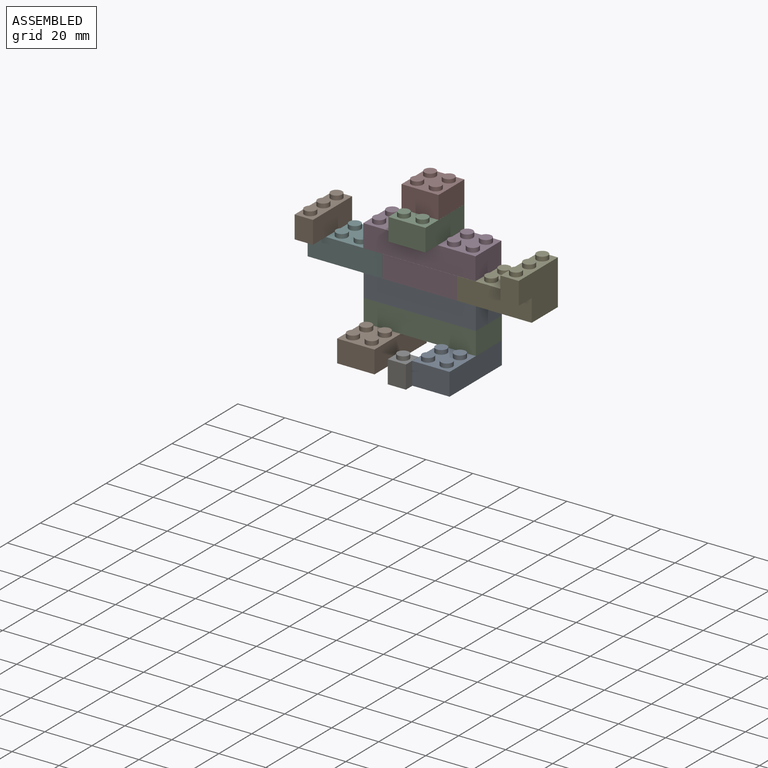
[diagram: assembled view]
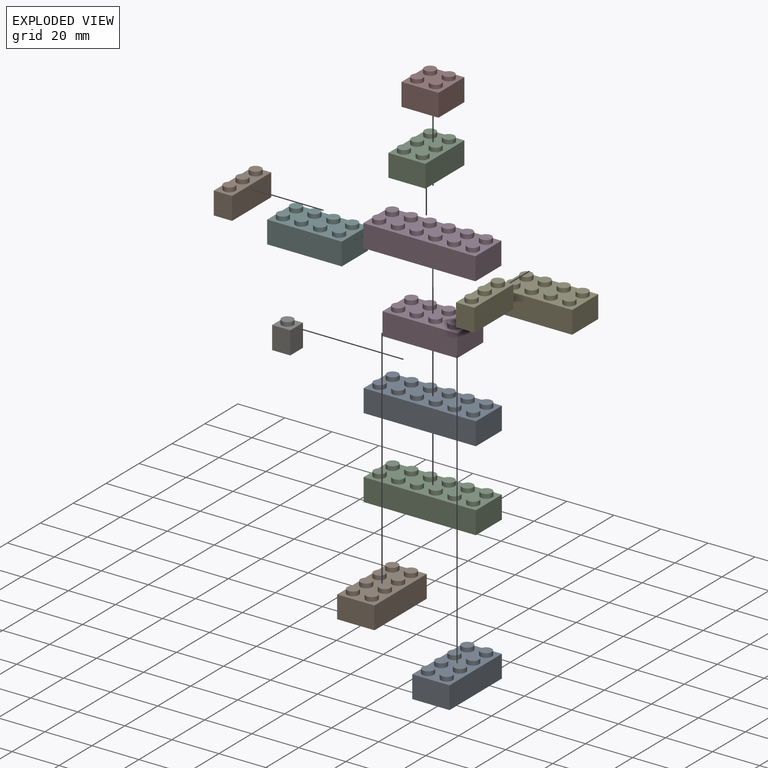
[diagram: exploded view]
GUIDED TOUR — MATED ASSEMBLY (Onshape document 305085a6f073faf01cab09ba, AutoMate assembly 305085a6f073faf01cab09ba_dc2637e5542e1af7b8d64128_6ebdd41f0725d19642ea5450_default)

This assembly has 13 components, labeled P0..P12 below (a component is one placed occurrence of a part; the same part can appear more than once), held together by 13 mates. A mate is a constraint between two components; its type names the relative motion it leaves free:
  PLANAR — leaves sliding in the plane through the listed point (normal = the listed direction) and rotation about that normal free,
  SLIDER — leaves translation along the listed axis free.
Axis/direction vectors are unit vectors and 'through' points are millimeter coordinates, both in the assembly's world frame.

MATES
  1. PLANAR "Planar 10": P7 <-> P10, direction (0.000, 0.000, -1.000) through (-56.49, -55.63, -75.43) mm
  2. PLANAR "Planar 3": P0 <-> P2, direction (0.000, 0.000, -1.000) through (-32.43, -71.74, -113.68) mm
  3. PLANAR "Planar 4": P5 <-> P0, direction (1.000, 0.000, 0.000) through (-72.27, -71.74, -104.08) mm
  4. SLIDER "Slider 1": P12 <-> P0, axis (0.000, 0.000, -1.000) through (-40.35, -56.00, -104.08) mm
  5. PLANAR "Planar 9": P10 <-> P3, direction (0.000, 0.000, -1.000) through (-56.49, -63.93, -84.95) mm
  6. PLANAR "Planar 12": P9 <-> P5, direction (0.000, 0.000, -1.000) through (-104.02, -55.87, -94.56) mm
  7. PLANAR "Planar 6": P11 <-> P12, direction (0.000, 0.000, -1.000) through (-40.35, -56.00, -104.08) mm
  8. PLANAR "Planar 1": P1 <-> P2, direction (0.000, 0.000, 1.000) through (-80.31, -55.91, -123.28) mm
  9. PLANAR "Planar 8": P3 <-> P12, direction (0.000, 0.000, -1.000) through (-40.35, -63.93, -94.56) mm
  10. PLANAR "Planar 13": P6 <-> P8, direction (1.000, 0.000, 0.000) through (-48.31, -87.75, -128.05) mm
  11. PLANAR "Planar 2": P8 <-> P2, direction (0.000, 0.000, 1.000) through (-32.43, -56.00, -123.28) mm
  12. PLANAR "Planar 11": P4 <-> P12, direction (0.000, 0.000, -1.000) through (-8.60, -56.00, -94.56) mm
  13. PLANAR "Planar 5": P12 <-> P0, direction (0.000, 0.000, -1.000) through (-40.35, -56.00, -104.08) mm

ASSEMBLY ORDER
  1. P3 — the base component [order verified]
  2. P5 [order verified]
  3. P11 [order verified]
  4. P10 [order verified]
  5. P0 [order verified]
  6. P7 [order verified]
  7. P2 [order verified]
  8. P1 [order verified]
  9. P8 [order verified]
  10. P12 [order verified]
  11. P9 [order verified]
  12. P4 [order verified]
  13. P6 [order verified]
Order-tag legend:
  [order verified] — this step's position reverses a verified removal order: the component was checked to insert without passing through the ones already placed.

Of the 13 components, 4 carry the full construction recipe — the FeatureScript program that regenerates the part's solid from scratch; the rest are supplied as boundary geometry only.
Because this assembly has more than 12 components, the tour below covers the 12 most significant ones individually (every recipe-attached component first, then the largest by part volume), in assembly order; the remaining 1 are summarized together in a grouped section at the end.
Each toured component is shown spotlighted twice — in the assembled view, then in the exploded view, where a leader line traces a displaced component back to its assembled socket (saturated green if recipe-attached, orange if geometry-only; every other component desaturated gray) — followed by its recipe or geometry summary and the mates that hold it.
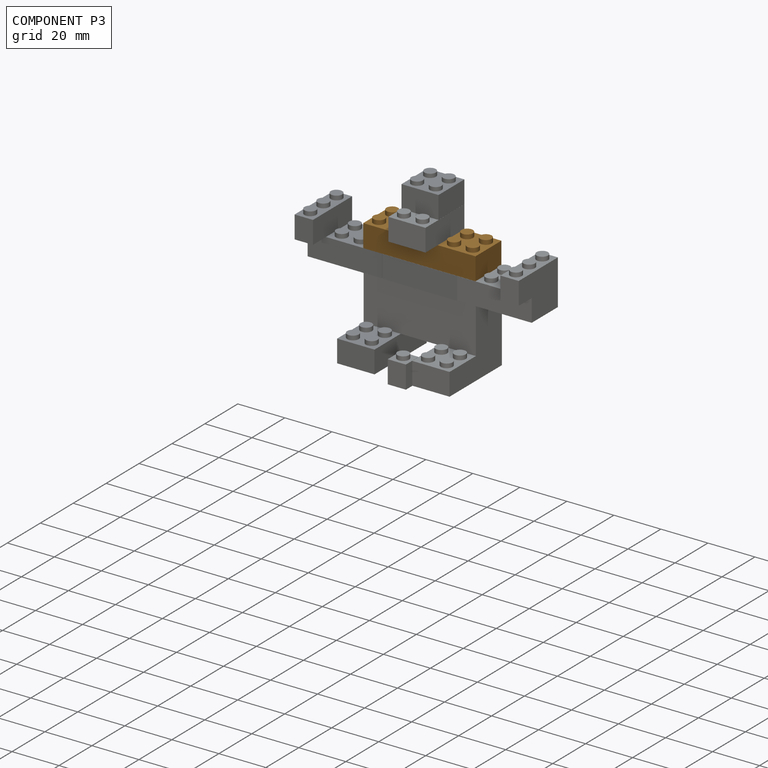
[diagram: component P3 — assembled]
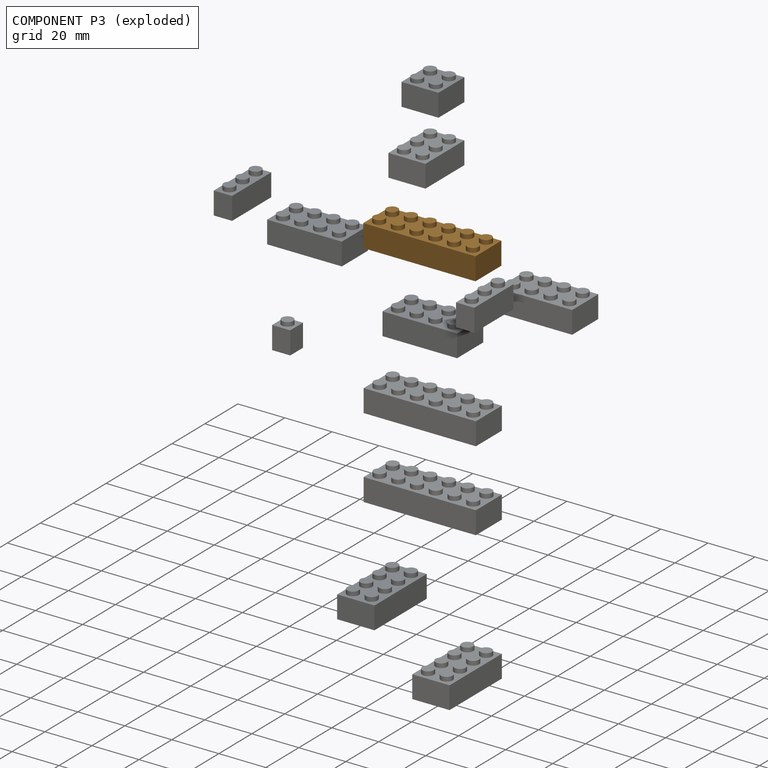
[diagram: component P3 — exploded]
COMPONENT P3 — geometry summary (no construction recipe available for this part):
  bounding box: 47.8 x 15.7 x 11.4 mm
  B-rep topology: 1 solid, 55 faces, 190 edges
  volume: 3729 mm^3 (43% of its bounding box)
  symmetry: 2-fold rotationally symmetric about the z axis; mirror-symmetric across its x mid-plane, y mid-plane
Held by: PLANAR mate "Planar 9" to P10; PLANAR mate "Planar 8" to P12.
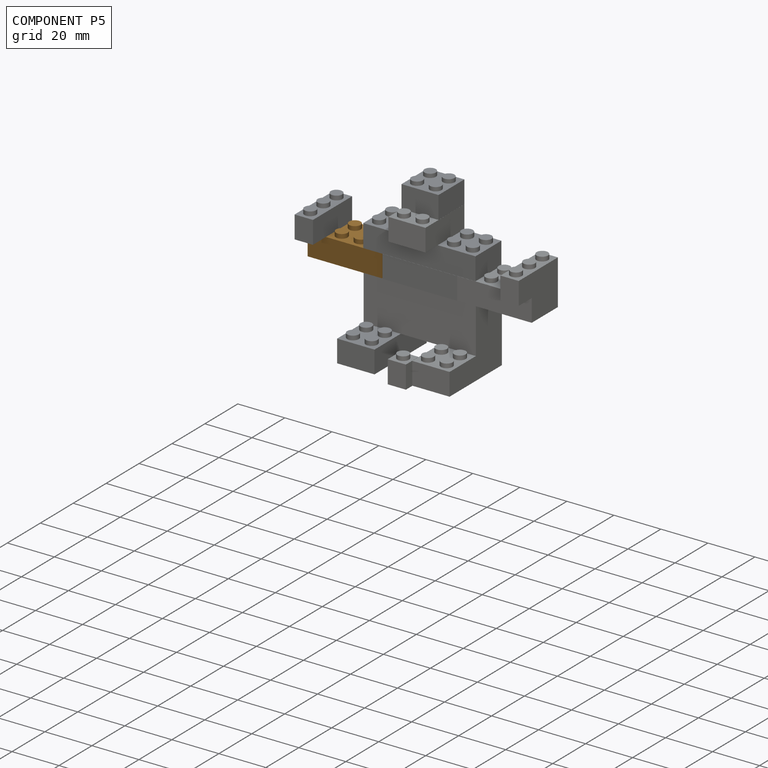
[diagram: component P5 — assembled]
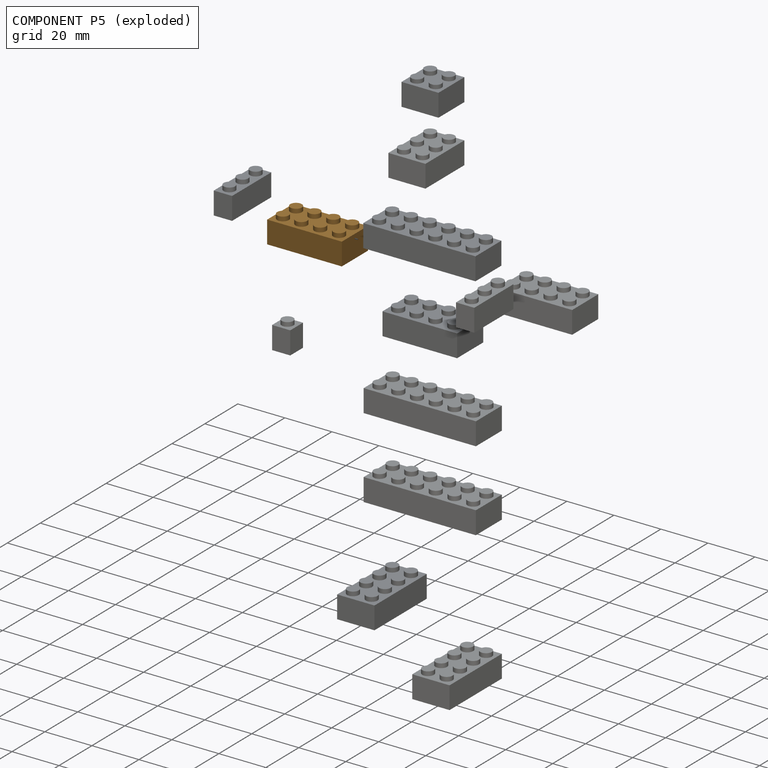
[diagram: component P5 — exploded]
COMPONENT P5 — geometry summary (no construction recipe available for this part):
  bounding box: 31.8 x 15.9 x 11.3 mm
  B-rep topology: 1 solid, 39 faces, 132 edges
  volume: 2222 mm^3 (39% of its bounding box)
  symmetry: mirror-symmetric across its y mid-plane
Held by: PLANAR mate "Planar 4" to P0; PLANAR mate "Planar 12" to P9.
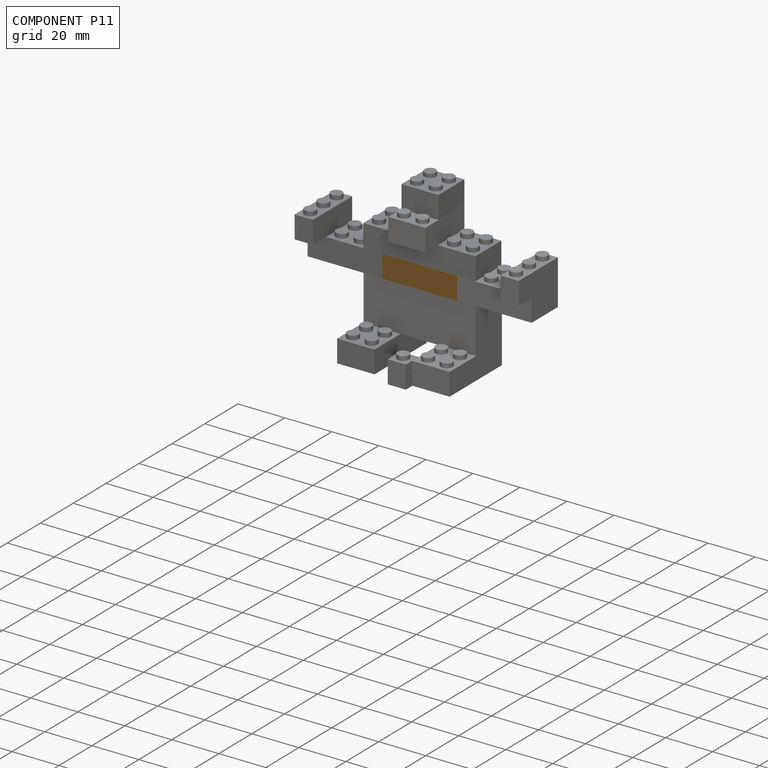
[diagram: component P11 — assembled]
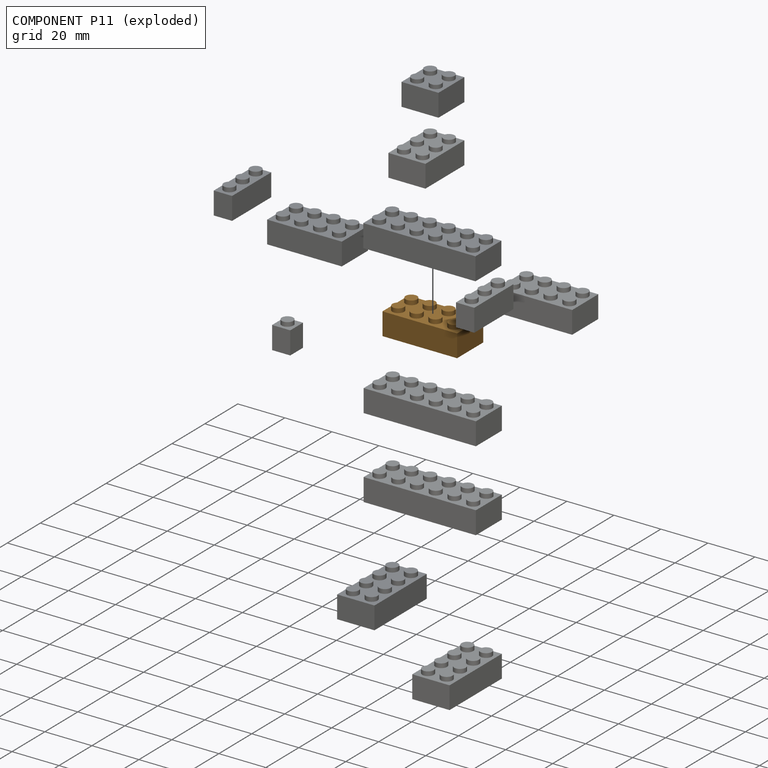
[diagram: component P11 — exploded]
COMPONENT P11 — geometry summary (no construction recipe available for this part):
  bounding box: 31.8 x 15.9 x 11.3 mm
  B-rep topology: 1 solid, 39 faces, 132 edges
  volume: 2222 mm^3 (39% of its bounding box)
  symmetry: mirror-symmetric across its y mid-plane
Held by: PLANAR mate "Planar 6" to P12.
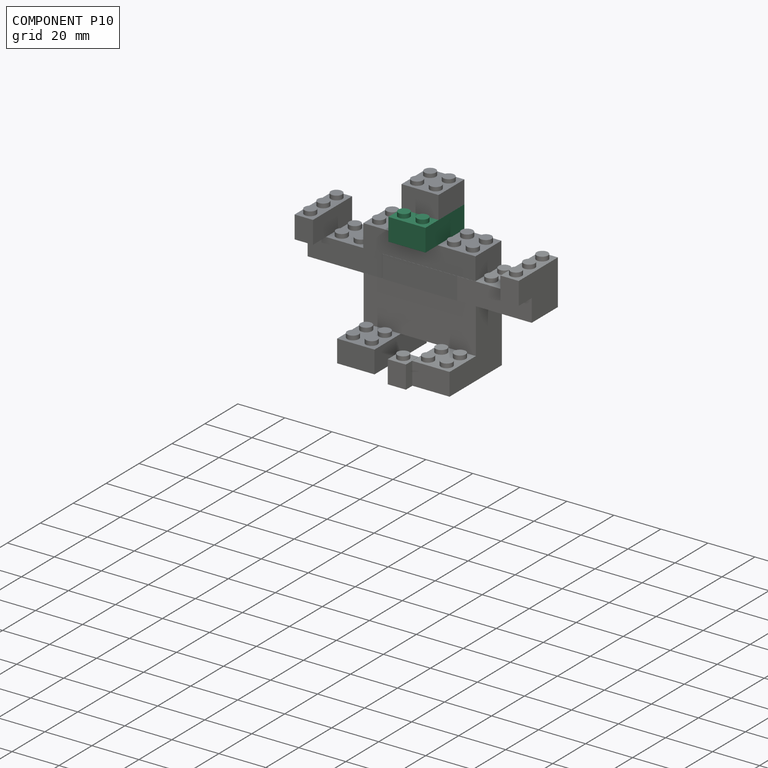
[diagram: component P10 — assembled]
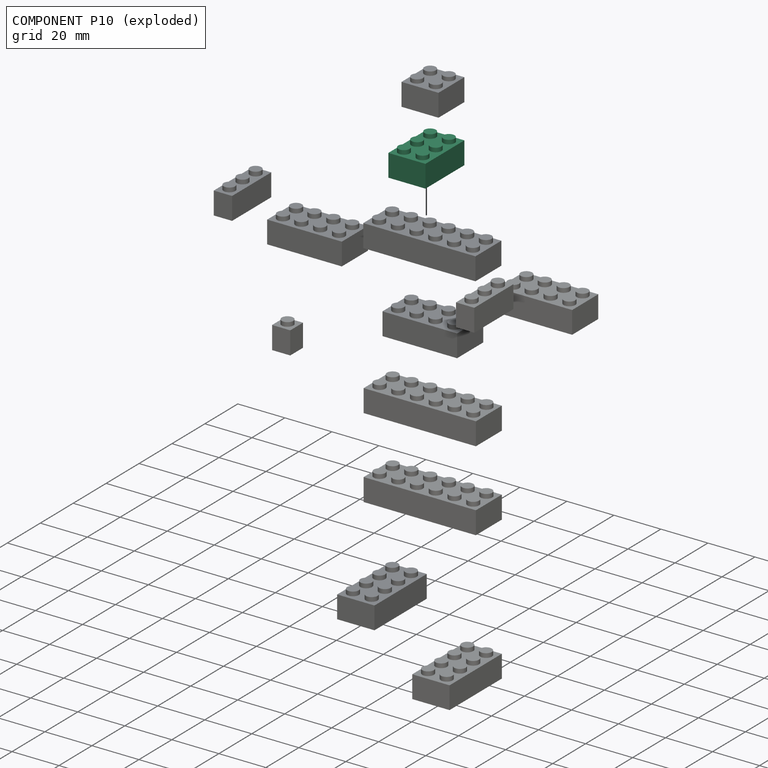
[diagram: component P10 — exploded]
COMPONENT P10 — recipe-attached (CADFS 00478267, mesh-verified: the recipe's output STEP matches this component's geometry to below the mesh-comparison resolution (tessellation chordal tolerance ~0.0459 mm)).
Held by: PLANAR mate "Planar 10" to P7; PLANAR mate "Planar 9" to P3.
Construction recipe (FeatureScript — the CAD program that rebuilds this solid; sketch coordinates are in the units given by the * unit suffixes, e.g. mm):

FeatureScript 1511;
import(path : "onshape/std/geometry.fs", version : "1511.0");
import(path : "onshape/std/common.fs", version : "1511.0");
const mm = millimeter;
const VERTEX = EntityType.VERTEX;
const EDGE = EntityType.EDGE;
const FACE = EntityType.FACE;
const BODY = EntityType.BODY;
function v(x, y){return vector(x, y);}
function OD(order){return orderDisambiguation(order);}
function OSD(set){return originalSetDisambiguation(set);}
function TD(topology){return topologyDisambiguation(topology);}
function TDD(query){return trueDependencyDisambiguation(query);}
function sQuery(a, b, c) {return sketchEntityQuery(a, b, c);}

annotation { "Feature Type Name" : "Feature", "Feature Type Description" : "" }
export const myFeature = defineFeature(function(context is Context, id is Id, definition is map)
    precondition{}
    {
        {
            var Q0;
            Q0=qCreatedBy(makeId("Top.planeOp"),FACE);
            var sketch = newSketch(context, id + "F0", { "sketchPlane" : qUnion([Q0])});
            skLineSegment(sketch, "E0.bottom", {"start": v(11.84, 7.89) * mm, "end": v(-11.84, 7.89) * mm});
            skLineSegment(sketch, "E0.top", {"start": v(11.84, -7.89) * mm, "end": v(-11.84, -7.89) * mm});
            skLineSegment(sketch, "E0.left", {"start": v(11.84, 7.89) * mm, "end": v(11.84, -7.89) * mm});
            skLineSegment(sketch, "E0.right", {"start": v(-11.84, 7.89) * mm, "end": v(-11.84, -7.89) * mm});
            skPoint(sketch, "E0.middle", {"position": v(0, 0) * mm});
            skSolve(sketch);
        }
        {
            var Q0;
            Q0=makeQuery(id+"F0.imprint","IMPRINT",FACE,{"disambiguationData":[TD([[makeQuery(id+"F0.imprint","IMPRINT",EDGE,{"derivedFrom":sQuery(id+"F0.wireOp",EDGE,"E0.bottom")}),1.0]])]});
            extrude(context, id + "F1", {"entities" : qUnion([Q0]), "endBound" : BoundingType.SYMMETRIC, "depth" : 9.52 * mm, "offsetDistance" : 25.4 * mm});
        }
        {
            var Q0;
            Q0=makeQuery(id+"F1.opExtrude","CAP_FACE",FACE,{"disambiguationData":[OSD([sQuery(id+"F0.wireOp",EDGE,"E0.bottom"),sQuery(id+"F0.wireOp",EDGE,"E0.top"),sQuery(id+"F0.wireOp",EDGE,"E0.left"),sQuery(id+"F0.wireOp",EDGE,"E0.right")])],"isStart":false});
            var sketch = newSketch(context, id + "F2", { "sketchPlane" : qUnion([Q0])});
            skCircle(sketch, "E1", {"center": v(-7.99, 3.98) * mm, "radius": 2.43 * mm});
            skCircle(sketch, "E2", {"center": v(0, 3.96) * mm, "radius": 2.43 * mm});
            skCircle(sketch, "E3", {"center": v(7.99, 3.96) * mm, "radius": 2.43 * mm});
            skCircle(sketch, "E4", {"center": v(7.99, -3.96) * mm, "radius": 2.43 * mm});
            skCircle(sketch, "E5", {"center": v(0, -3.96) * mm, "radius": 2.43 * mm});
            skCircle(sketch, "E6", {"center": v(-7.99, -3.98) * mm, "radius": 2.43 * mm});
            skSolve(sketch);
        }
        {
            var Q0;
            Q0 = qSketchRegion(id + "F2", true);
            extrude(context, id + "F3", {"entities" : qUnion([Q0]), "operationType" : NewBodyOperationType.ADD, "depth" : 1.75 * mm, "offsetDistance" : 25.4 * mm});
        }
        {
            var Q0;
            Q0=makeQuery(id+"F1.opExtrude","CAP_FACE",FACE,{"disambiguationData":[OSD([sQuery(id+"F0.wireOp",EDGE,"E0.bottom"),sQuery(id+"F0.wireOp",EDGE,"E0.top"),sQuery(id+"F0.wireOp",EDGE,"E0.left"),sQuery(id+"F0.wireOp",EDGE,"E0.right")])],"isStart":true});
            var sketch = newSketch(context, id + "F4", { "sketchPlane" : qUnion([Q0])});
            skLineSegment(sketch, "E7.bottom", {"start": v(10.31, 6.62) * mm, "end": v(-10.31, 6.62) * mm});
            skLineSegment(sketch, "E7.top", {"start": v(10.31, -6.62) * mm, "end": v(-10.31, -6.62) * mm});
            skLineSegment(sketch, "E7.left", {"start": v(10.31, 6.62) * mm, "end": v(10.31, -6.62) * mm});
            skLineSegment(sketch, "E7.right", {"start": v(-10.31, 6.62) * mm, "end": v(-10.31, -6.62) * mm});
            skPoint(sketch, "E7.middle", {"position": v(0, 0) * mm});
            skSolve(sketch);
        }
        {
            var Q0;
            Q0=makeQuery(id+"F4.imprint","IMPRINT",FACE,{"disambiguationData":[TD([[makeQuery(id+"F4.imprint","IMPRINT",EDGE,{"derivedFrom":sQuery(id+"F4.wireOp",EDGE,"E7.bottom")}),1.0]])]});
            var sketch = newSketch(context, id + "F5", { "sketchPlane" : qUnion([Q0])});
            skCircle(sketch, "E8", {"center": v(-3.53, 0) * mm, "radius": 3.23 * mm});
            skCircle(sketch, "E9", {"center": v(3.53, 0) * mm, "radius": 3.23 * mm});
            skSolve(sketch);
        }
        {
            var Q0;
            Q0=makeQuery(id+"F4.imprint","IMPRINT",FACE,{"disambiguationData":[TD([[makeQuery(id+"F4.imprint","IMPRINT",EDGE,{"derivedFrom":sQuery(id+"F4.wireOp",EDGE,"E7.bottom")}),1.0]])]});
            var sketch = newSketch(context, id + "F6", { "sketchPlane" : qUnion([Q0])});
            skCircle(sketch, "E10", {"center": v(-3.53, 0) * mm, "radius": 2.39 * mm});
            skCircle(sketch, "E11", {"center": v(3.53, 0) * mm, "radius": 2.39 * mm});
            skSolve(sketch);
        }
        {
            var Q0;
            Q0=makeQuery(id+"F4.imprint","IMPRINT",FACE,{"disambiguationData":[TD([[makeQuery(id+"F4.imprint","IMPRINT",EDGE,{"derivedFrom":sQuery(id+"F4.wireOp",EDGE,"E7.bottom")}),1.0]])]});
            extrude(context, id + "F7", {"entities" : qUnion([Q0]), "operationType" : NewBodyOperationType.REMOVE, "oppositeDirection" : true, "depth" : 8.3 * mm, "offsetDistance" : 25.4 * mm});
        }
        {
            var Q0;
            Q0=makeQuery(id+"F5.imprint","IMPRINT",FACE,{"disambiguationData":[TD([[makeQuery(id+"F5.imprint","IMPRINT",EDGE,{"derivedFrom":sQuery(id+"F5.wireOp",EDGE,"E8")}),1.0]])]});
            var Q1;
            Q1=makeQuery(id+"F5.imprint","IMPRINT",FACE,{"disambiguationData":[TD([[makeQuery(id+"F5.imprint","IMPRINT",EDGE,{"derivedFrom":sQuery(id+"F5.wireOp",EDGE,"E9")}),1.0]])]});
            extrude(context, id + "F8", {"entities" : qUnion([Q0, Q1]), "operationType" : NewBodyOperationType.ADD, "depth" : -8.3 * mm, "offsetDistance" : 25.4 * mm});
        }
        {
            var Q0;
            Q0=makeQuery(id+"F6.imprint","IMPRINT",FACE,{"disambiguationData":[TD([[makeQuery(id+"F6.imprint","IMPRINT",EDGE,{"derivedFrom":sQuery(id+"F6.wireOp",EDGE,"E10")}),1.0]])]});
            var Q1;
            Q1=makeQuery(id+"F6.imprint","IMPRINT",FACE,{"disambiguationData":[TD([[makeQuery(id+"F6.imprint","IMPRINT",EDGE,{"derivedFrom":sQuery(id+"F6.wireOp",EDGE,"E11")}),1.0]])]});
            extrude(context, id + "F9", {"entities" : qUnion([Q0, Q1]), "operationType" : NewBodyOperationType.REMOVE, "oppositeDirection" : true, "depth" : 8.3 * mm, "offsetDistance" : 25.4 * mm});
        }
    });
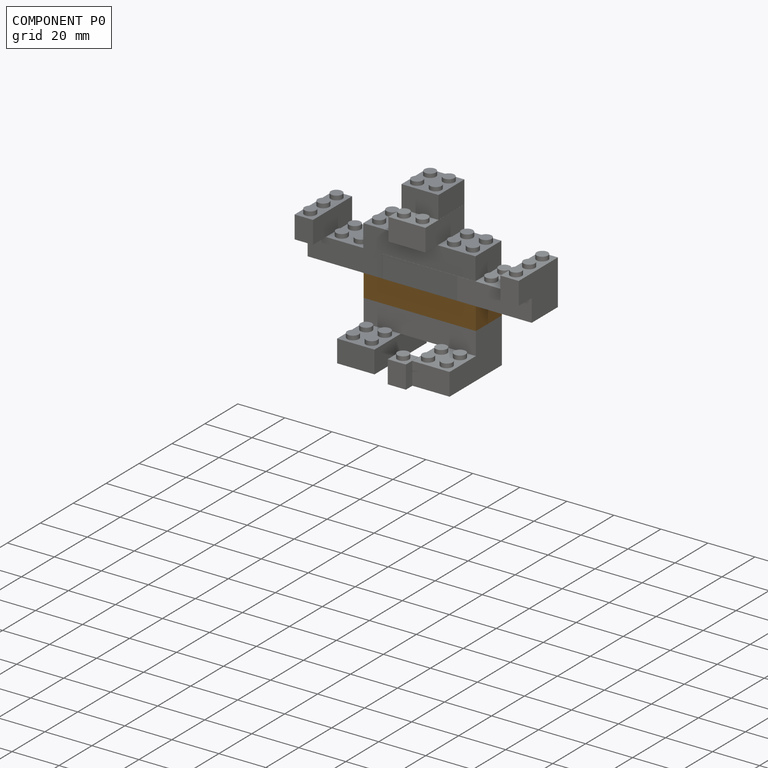
[diagram: component P0 — assembled]
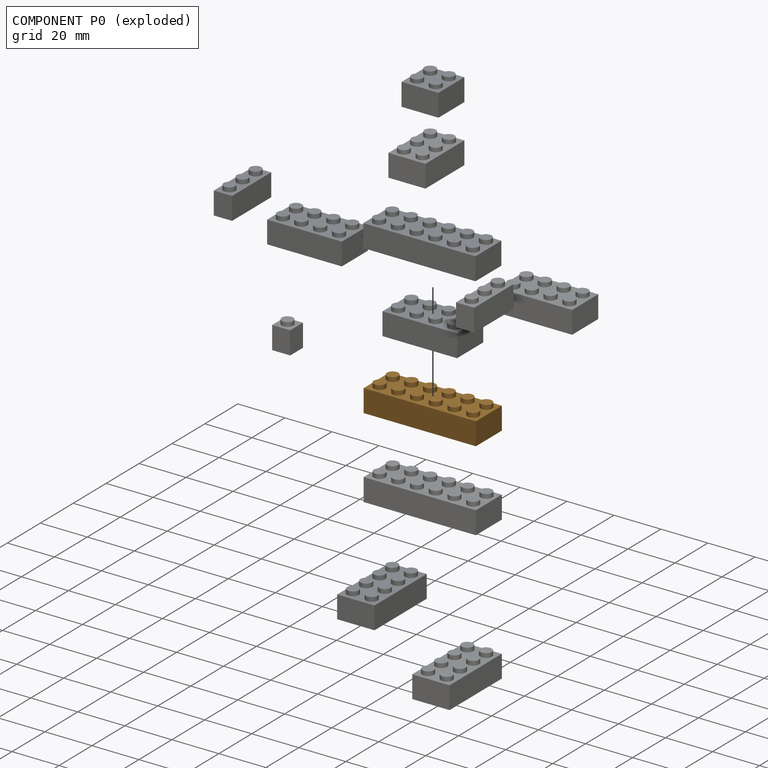
[diagram: component P0 — exploded]
COMPONENT P0 — geometry summary (no construction recipe available for this part):
  bounding box: 47.8 x 15.7 x 11.4 mm
  B-rep topology: 1 solid, 55 faces, 190 edges
  volume: 3729 mm^3 (43% of its bounding box)
  symmetry: 2-fold rotationally symmetric about the z axis; mirror-symmetric across its x mid-plane, y mid-plane
Held by: PLANAR mate "Planar 3" to P2; PLANAR mate "Planar 4" to P5; SLIDER mate "Slider 1" to P12; PLANAR mate "Planar 5" to P12.
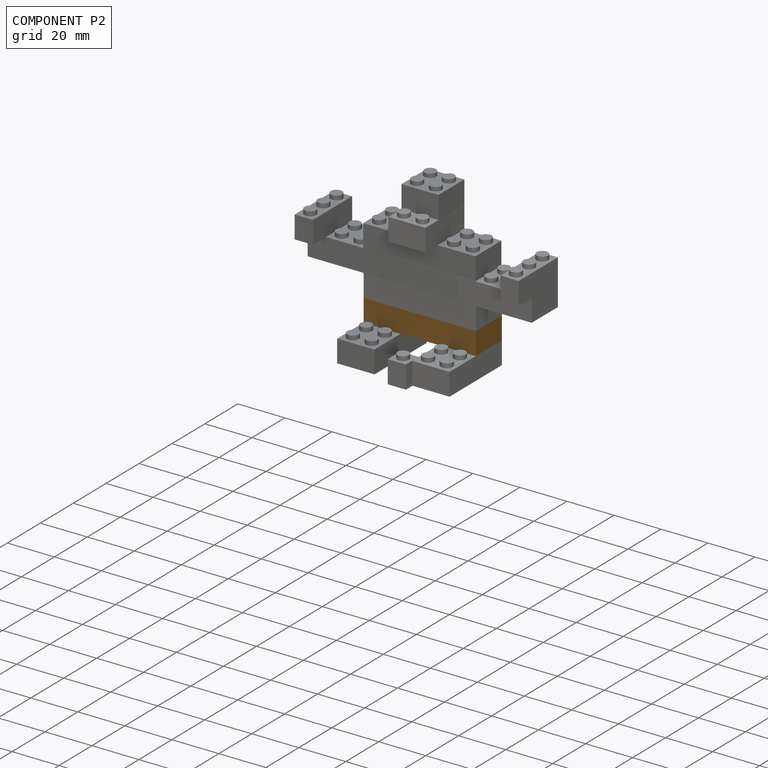
[diagram: component P2 — assembled]
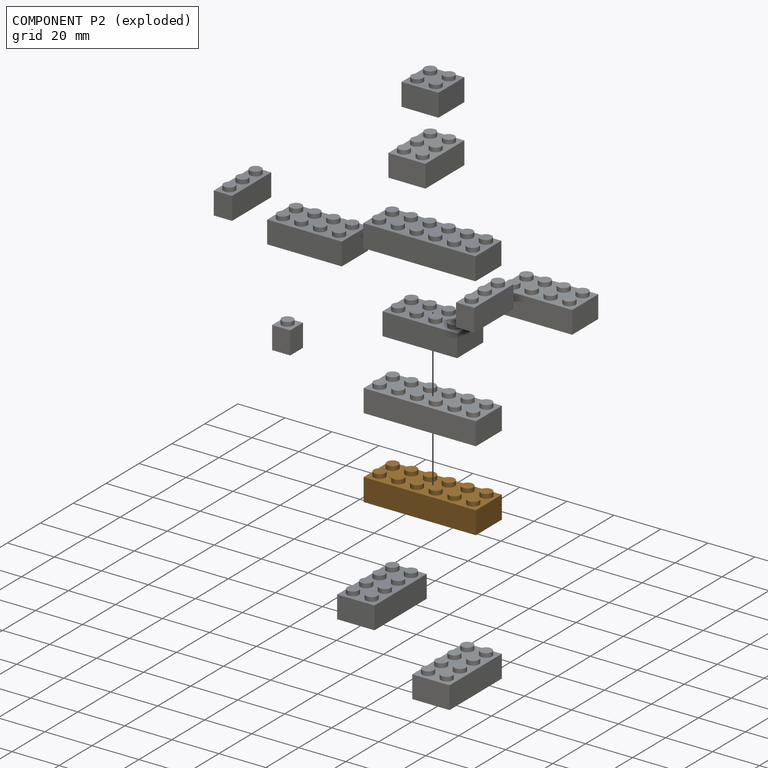
[diagram: component P2 — exploded]
COMPONENT P2 — geometry summary (no construction recipe available for this part):
  bounding box: 47.8 x 15.7 x 11.4 mm
  B-rep topology: 1 solid, 55 faces, 190 edges
  volume: 3729 mm^3 (43% of its bounding box)
  symmetry: 2-fold rotationally symmetric about the z axis; mirror-symmetric across its x mid-plane, y mid-plane
Held by: PLANAR mate "Planar 3" to P0; PLANAR mate "Planar 1" to P1; PLANAR mate "Planar 2" to P8.
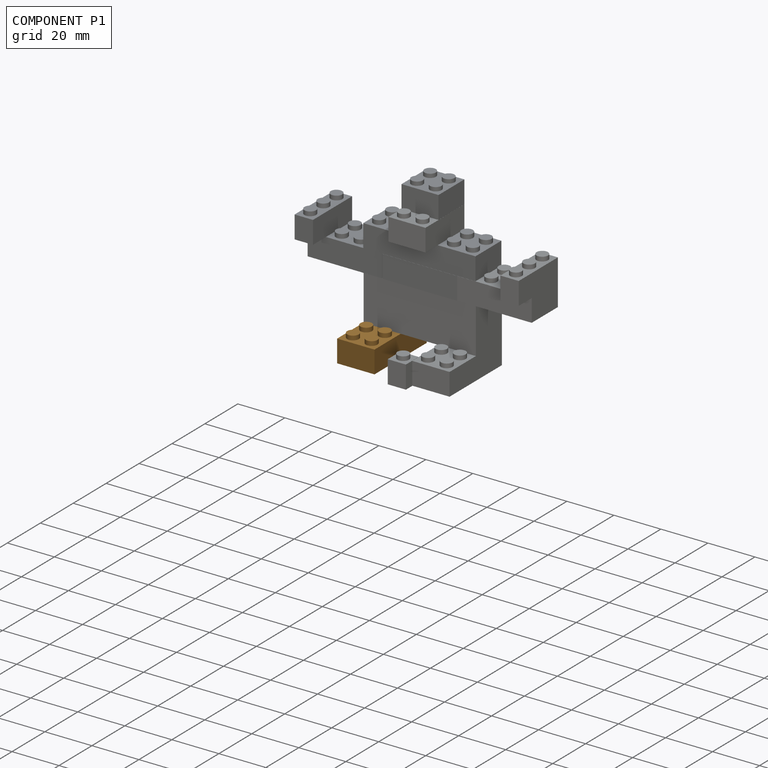
[diagram: component P1 — assembled]
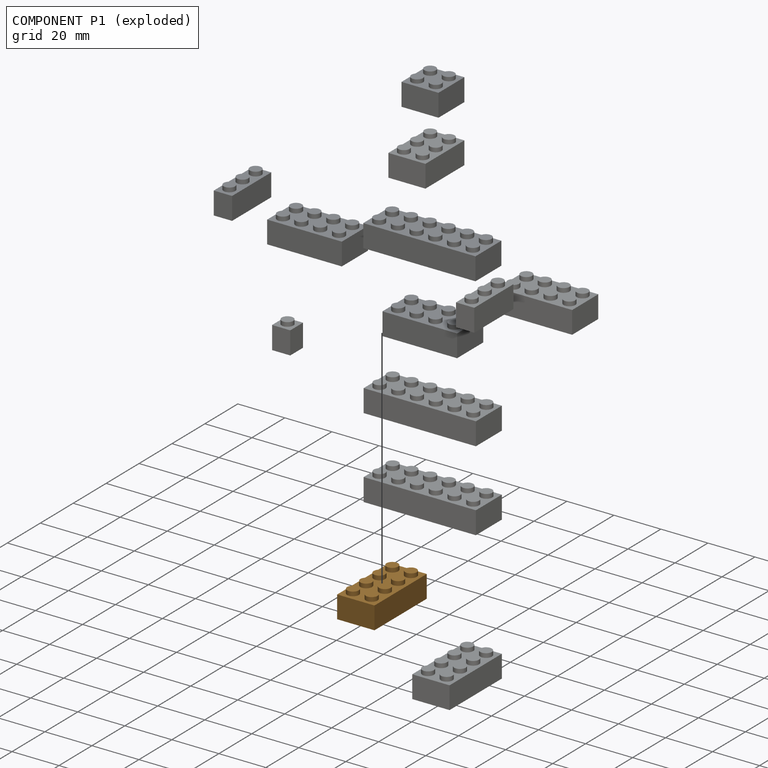
[diagram: component P1 — exploded]
COMPONENT P1 — geometry summary (no construction recipe available for this part):
  bounding box: 31.8 x 15.9 x 11.3 mm
  B-rep topology: 1 solid, 39 faces, 132 edges
  volume: 2222 mm^3 (39% of its bounding box)
  symmetry: mirror-symmetric across its y mid-plane
Held by: PLANAR mate "Planar 1" to P2.
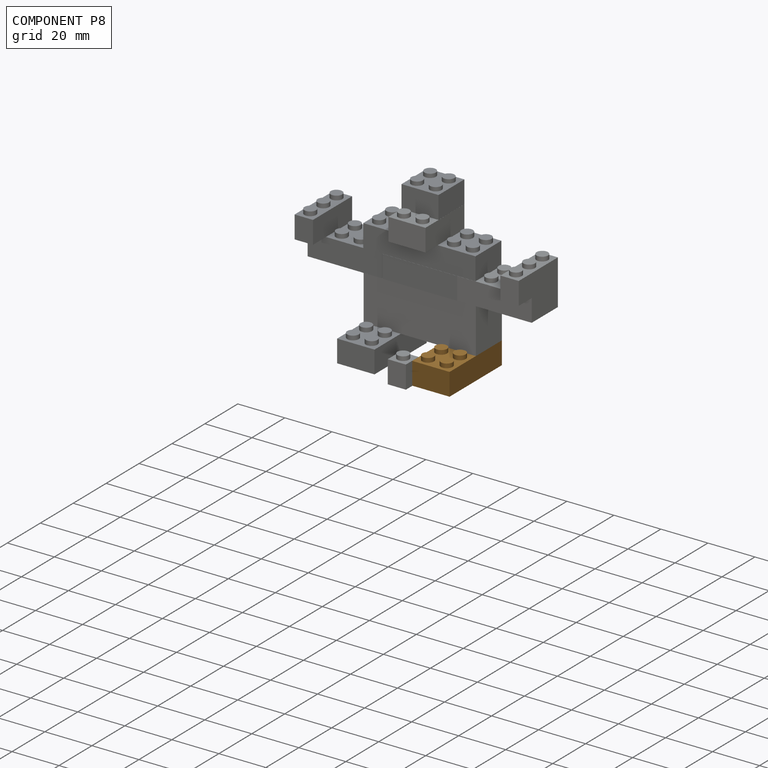
[diagram: component P8 — assembled]
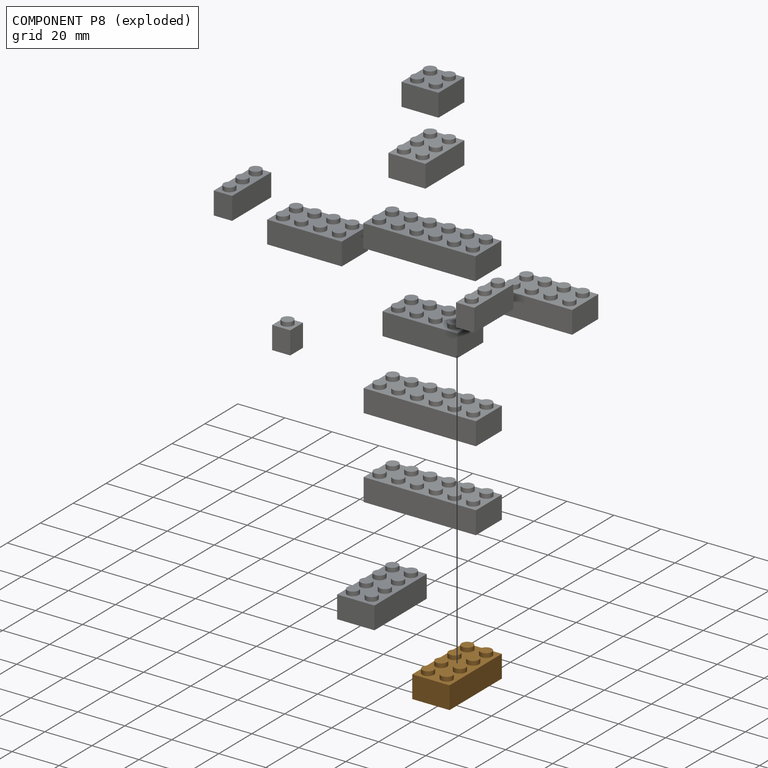
[diagram: component P8 — exploded]
COMPONENT P8 — geometry summary (no construction recipe available for this part):
  bounding box: 31.8 x 15.9 x 11.3 mm
  B-rep topology: 1 solid, 39 faces, 132 edges
  volume: 2222 mm^3 (39% of its bounding box)
  symmetry: mirror-symmetric across its y mid-plane
Held by: PLANAR mate "Planar 13" to P6; PLANAR mate "Planar 2" to P2.
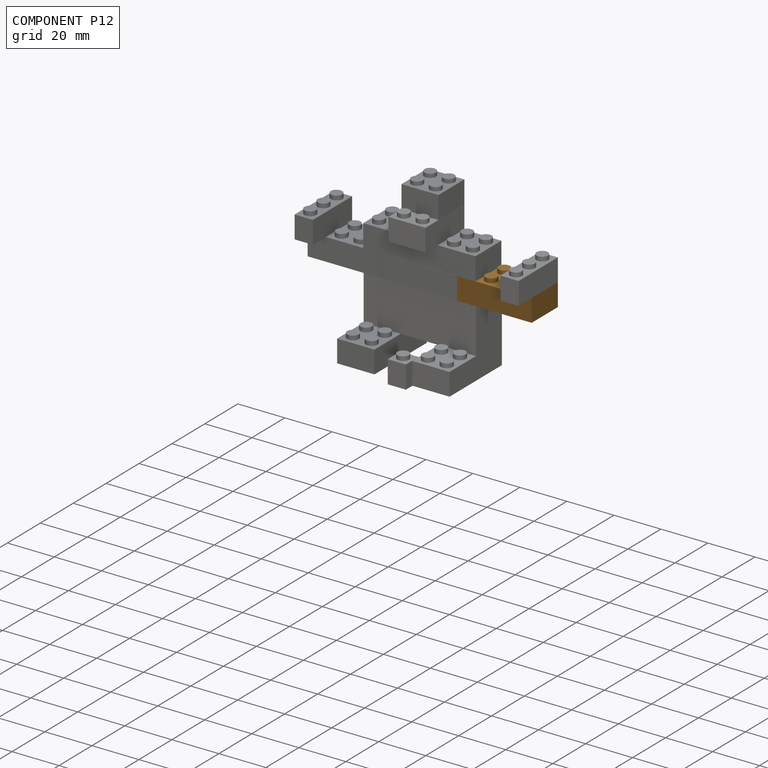
[diagram: component P12 — assembled]
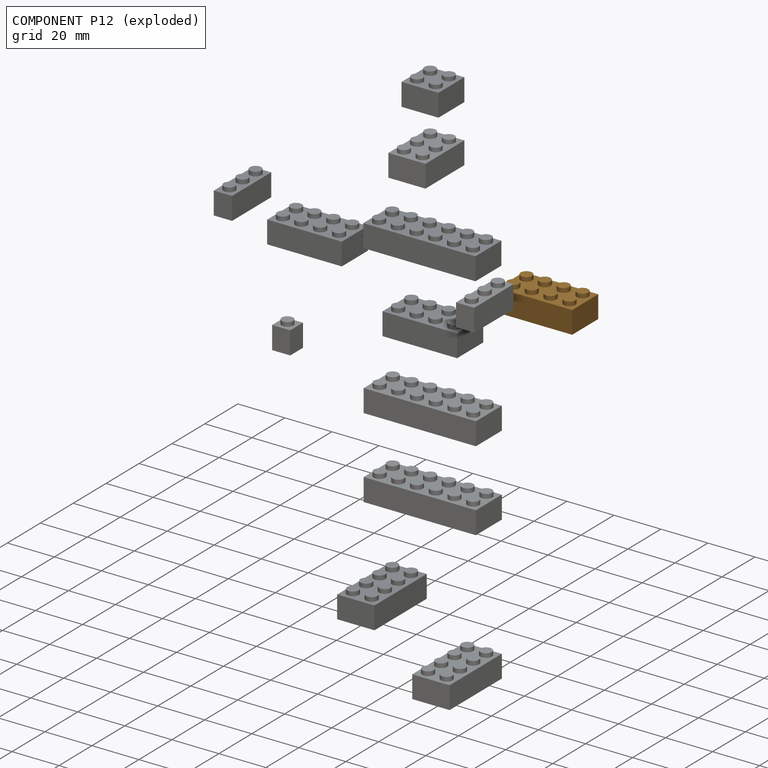
[diagram: component P12 — exploded]
COMPONENT P12 — geometry summary (no construction recipe available for this part):
  bounding box: 31.8 x 15.9 x 11.3 mm
  B-rep topology: 1 solid, 39 faces, 132 edges
  volume: 2222 mm^3 (39% of its bounding box)
  symmetry: mirror-symmetric across its y mid-plane
Held by: SLIDER mate "Slider 1" to P0; PLANAR mate "Planar 6" to P11; PLANAR mate "Planar 8" to P3; PLANAR mate "Planar 11" to P4; PLANAR mate "Planar 5" to P0.
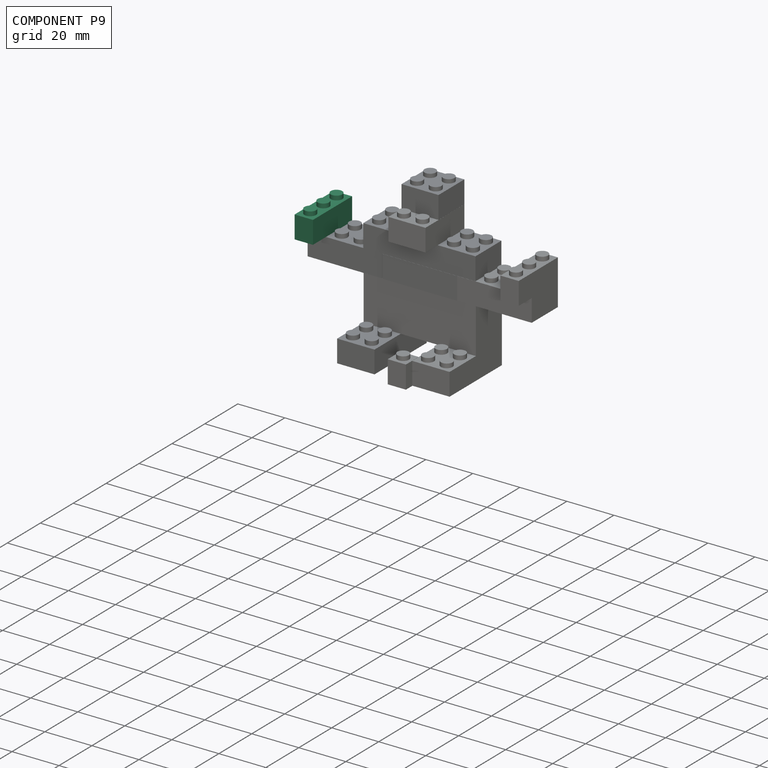
[diagram: component P9 — assembled]
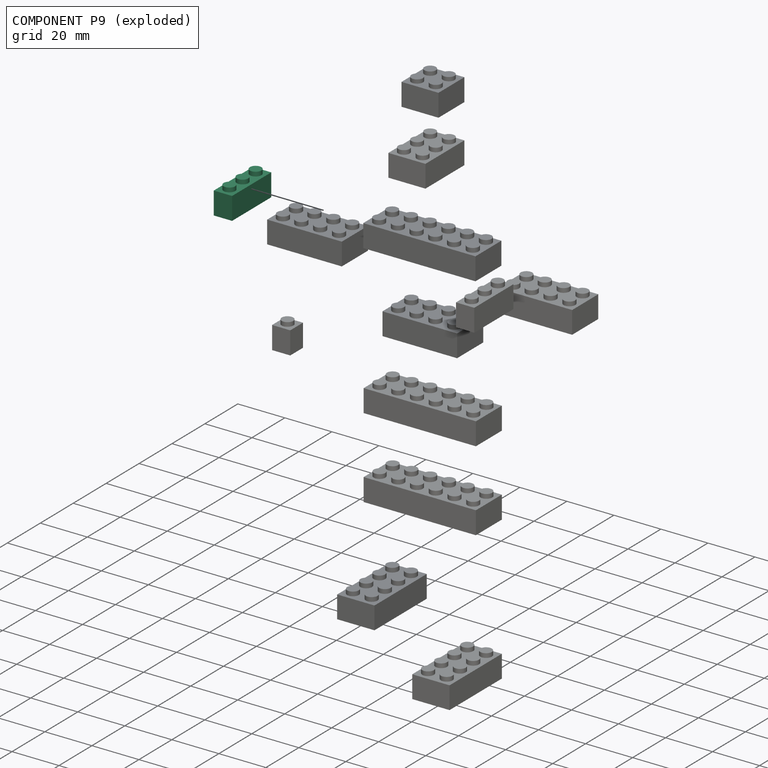
[diagram: component P9 — exploded]
COMPONENT P9 — same part as P4 (CADFS 00478265); its construction recipe is shown at P4.
Held by: PLANAR mate "Planar 12" to P5.
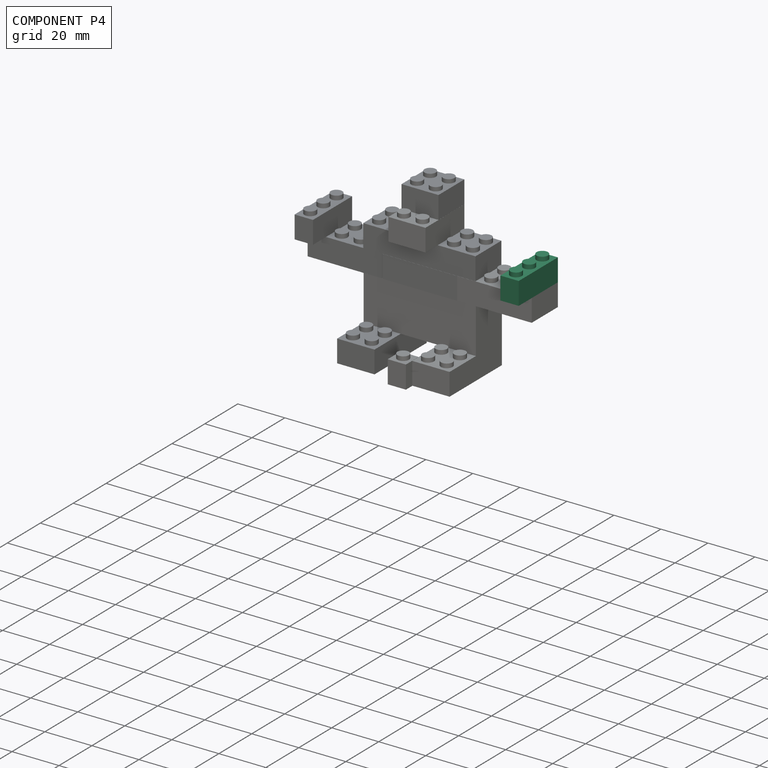
[diagram: component P4 — assembled]
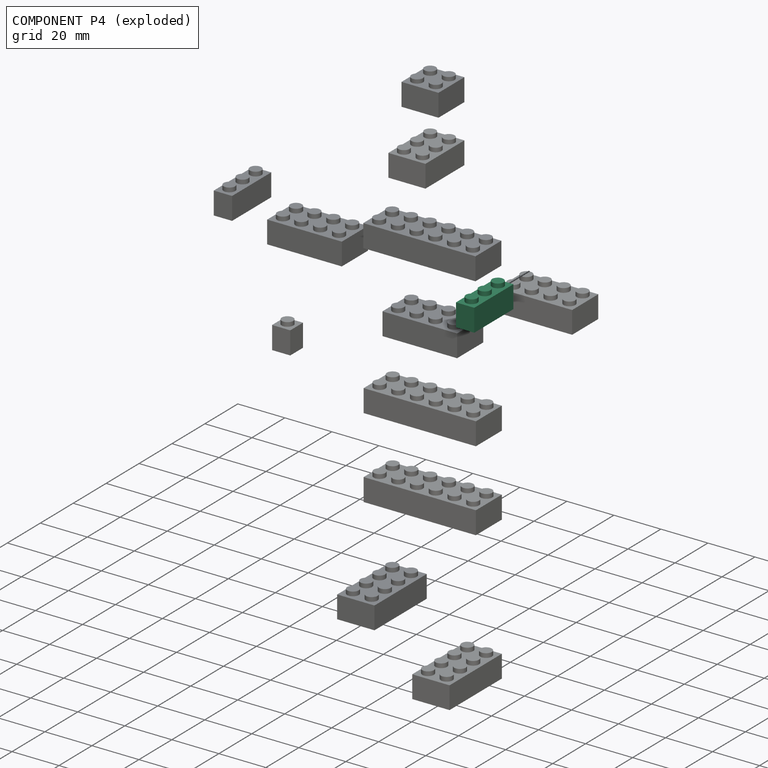
[diagram: component P4 — exploded]
COMPONENT P4 — recipe-attached (CADFS 00478265, mesh-verified: the recipe's output STEP matches this component's geometry to below the mesh-comparison resolution (tessellation chordal tolerance ~0.0412 mm)).
Held by: PLANAR mate "Planar 11" to P12.
Construction recipe (FeatureScript — the CAD program that rebuilds this solid; sketch coordinates are in the units given by the * unit suffixes, e.g. mm):

FeatureScript 1511;
import(path : "onshape/std/geometry.fs", version : "1511.0");
import(path : "onshape/std/common.fs", version : "1511.0");
const mm = millimeter;
const VERTEX = EntityType.VERTEX;
const EDGE = EntityType.EDGE;
const FACE = EntityType.FACE;
const BODY = EntityType.BODY;
function v(x, y){return vector(x, y);}
function OD(order){return orderDisambiguation(order);}
function OSD(set){return originalSetDisambiguation(set);}
function TD(topology){return topologyDisambiguation(topology);}
function TDD(query){return trueDependencyDisambiguation(query);}
function sQuery(a, b, c) {return sketchEntityQuery(a, b, c);}

annotation { "Feature Type Name" : "Feature", "Feature Type Description" : "" }
export const myFeature = defineFeature(function(context is Context, id is Id, definition is map)
    precondition{}
    {
        {
            var Q0;
            Q0=qCreatedBy(makeId("Top.planeOp"),FACE);
            var sketch = newSketch(context, id + "F0", { "sketchPlane" : qUnion([Q0])});
            skLineSegment(sketch, "E0.bottom", {"start": v(11.89, 3.9) * mm, "end": v(-11.89, 3.9) * mm});
            skLineSegment(sketch, "E0.top", {"start": v(11.89, -3.9) * mm, "end": v(-11.89, -3.9) * mm});
            skLineSegment(sketch, "E0.left", {"start": v(11.89, 3.9) * mm, "end": v(11.89, -3.9) * mm});
            skLineSegment(sketch, "E0.right", {"start": v(-11.89, 3.9) * mm, "end": v(-11.89, -3.9) * mm});
            skPoint(sketch, "E0.middle", {"position": v(0, 0) * mm});
            skSolve(sketch);
        }
        {
            var Q0;
            Q0=makeQuery(id+"F0.imprint","IMPRINT",FACE,{"disambiguationData":[TD([[makeQuery(id+"F0.imprint","IMPRINT",EDGE,{"derivedFrom":sQuery(id+"F0.wireOp",EDGE,"E0.bottom")}),1.0]])]});
            extrude(context, id + "F1", {"entities" : qUnion([Q0]), "endBound" : BoundingType.SYMMETRIC, "depth" : 9.58 * mm, "offsetDistance" : 25.4 * mm});
        }
        {
            var Q0;
            Q0=makeQuery(id+"F1.opExtrude","CAP_FACE",FACE,{"disambiguationData":[OSD([sQuery(id+"F0.wireOp",EDGE,"E0.bottom"),sQuery(id+"F0.wireOp",EDGE,"E0.top"),sQuery(id+"F0.wireOp",EDGE,"E0.left"),sQuery(id+"F0.wireOp",EDGE,"E0.right")])],"isStart":false});
            var sketch = newSketch(context, id + "F2", { "sketchPlane" : qUnion([Q0])});
            skCircle(sketch, "E1", {"center": v(-7.98, 0) * mm, "radius": 2.45 * mm});
            skCircle(sketch, "E2", {"center": v(0, 0) * mm, "radius": 2.45 * mm});
            skCircle(sketch, "E3", {"center": v(7.98, 0) * mm, "radius": 2.45 * mm});
            skSolve(sketch);
        }
        {
            var Q0;
            Q0 = qSketchRegion(id + "F2", true);
            extrude(context, id + "F3", {"entities" : qUnion([Q0]), "operationType" : NewBodyOperationType.ADD, "depth" : 1.83 * mm, "offsetDistance" : 25.4 * mm});
        }
        {
            var Q0;
            Q0=makeQuery(id+"F1.opExtrude","CAP_FACE",FACE,{"disambiguationData":[OSD([sQuery(id+"F0.wireOp",EDGE,"E0.bottom"),sQuery(id+"F0.wireOp",EDGE,"E0.top"),sQuery(id+"F0.wireOp",EDGE,"E0.left"),sQuery(id+"F0.wireOp",EDGE,"E0.right")])],"isStart":true});
            var sketch = newSketch(context, id + "F4", { "sketchPlane" : qUnion([Q0])});
            skLineSegment(sketch, "E4.bottom", {"start": v(10.36, 2.37) * mm, "end": v(-10.36, 2.37) * mm});
            skLineSegment(sketch, "E4.top", {"start": v(10.36, -2.37) * mm, "end": v(-10.36, -2.37) * mm});
            skLineSegment(sketch, "E4.left", {"start": v(10.36, 2.37) * mm, "end": v(10.36, -2.37) * mm});
            skLineSegment(sketch, "E4.right", {"start": v(-10.36, 2.37) * mm, "end": v(-10.36, -2.37) * mm});
            skPoint(sketch, "E4.middle", {"position": v(0, 0) * mm});
            skSolve(sketch);
        }
        {
            var Q0;
            Q0=makeQuery(id+"F4.imprint","IMPRINT",FACE,{"disambiguationData":[TD([[makeQuery(id+"F4.imprint","IMPRINT",EDGE,{"derivedFrom":sQuery(id+"F4.wireOp",EDGE,"E4.bottom")}),1.0]])]});
            var sketch = newSketch(context, id + "F5", { "sketchPlane" : qUnion([Q0])});
            skCircle(sketch, "E5", {"center": v(-4, 0) * mm, "radius": 1.49 * mm});
            skCircle(sketch, "E6", {"center": v(3.92, 0) * mm, "radius": 1.56 * mm});
            skSolve(sketch);
        }
        {
            var Q0;
            Q0=makeQuery(id+"F4.imprint","IMPRINT",FACE,{"disambiguationData":[TD([[makeQuery(id+"F4.imprint","IMPRINT",EDGE,{"derivedFrom":sQuery(id+"F4.wireOp",EDGE,"E4.bottom")}),1.0]])]});
            extrude(context, id + "F6", {"entities" : qUnion([Q0]), "operationType" : NewBodyOperationType.REMOVE, "oppositeDirection" : true, "depth" : 8.08 * mm, "offsetDistance" : 25.4 * mm});
        }
        {
            var Q0;
            Q0=makeQuery(id+"F5.imprint","IMPRINT",FACE,{"disambiguationData":[TD([[makeQuery(id+"F5.imprint","IMPRINT",EDGE,{"derivedFrom":sQuery(id+"F5.wireOp",EDGE,"E5")}),1.0]])]});
            var Q1;
            Q1=makeQuery(id+"F5.imprint","IMPRINT",FACE,{"disambiguationData":[TD([[makeQuery(id+"F5.imprint","IMPRINT",EDGE,{"derivedFrom":sQuery(id+"F5.wireOp",EDGE,"E6")}),1.0]])]});
            extrude(context, id + "F7", {"entities" : qUnion([Q0, Q1]), "operationType" : NewBodyOperationType.ADD, "depth" : -8.08 * mm, "offsetDistance" : 25.4 * mm});
        }
    });
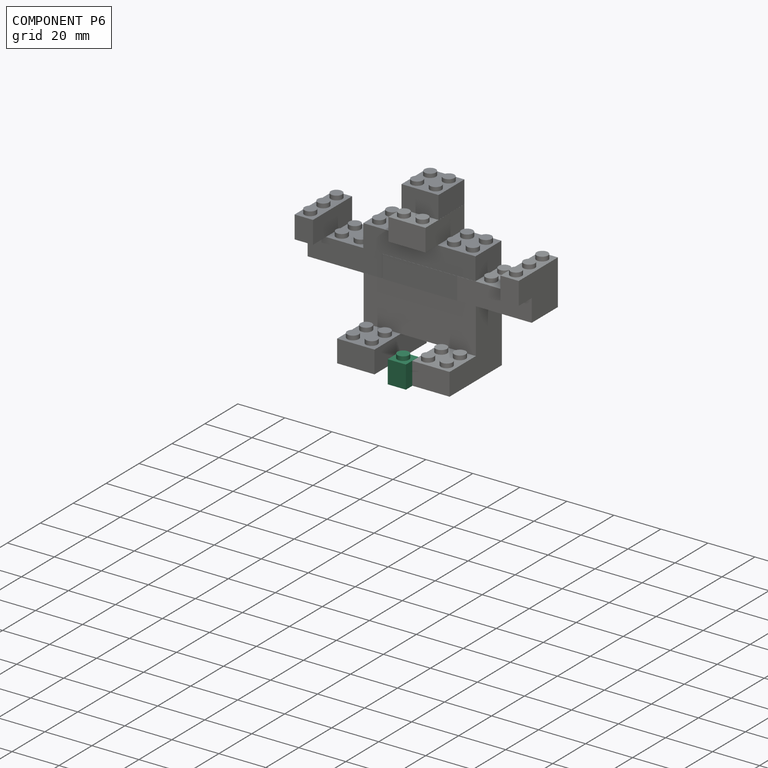
[diagram: component P6 — assembled]
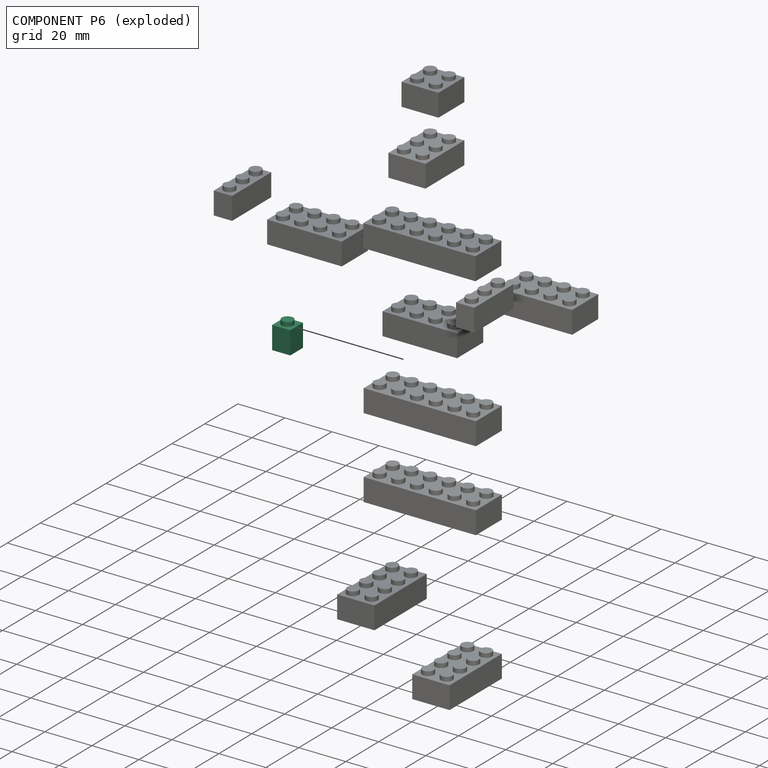
[diagram: component P6 — exploded]
COMPONENT P6 — recipe-attached (CADFS 00478268, mesh-verified: the recipe's output STEP matches this component's geometry to below the mesh-comparison resolution (tessellation chordal tolerance ~0.0237 mm)).
Held by: PLANAR mate "Planar 13" to P8.
Construction recipe (FeatureScript — the CAD program that rebuilds this solid; sketch coordinates are in the units given by the * unit suffixes, e.g. mm):

FeatureScript 1511;
import(path : "onshape/std/geometry.fs", version : "1511.0");
import(path : "onshape/std/common.fs", version : "1511.0");
const mm = millimeter;
const VERTEX = EntityType.VERTEX;
const EDGE = EntityType.EDGE;
const FACE = EntityType.FACE;
const BODY = EntityType.BODY;
function v(x, y){return vector(x, y);}
function OD(order){return orderDisambiguation(order);}
function OSD(set){return originalSetDisambiguation(set);}
function TD(topology){return topologyDisambiguation(topology);}
function TDD(query){return trueDependencyDisambiguation(query);}
function sQuery(a, b, c) {return sketchEntityQuery(a, b, c);}

annotation { "Feature Type Name" : "Feature", "Feature Type Description" : "" }
export const myFeature = defineFeature(function(context is Context, id is Id, definition is map)
    precondition{}
    {
        {
            var Q0;
            Q0=qCreatedBy(makeId("Top.planeOp"),FACE);
            var sketch = newSketch(context, id + "F0", { "sketchPlane" : qUnion([Q0])});
            skLineSegment(sketch, "E0.bottom", {"start": v(3.86, 3.86) * mm, "end": v(-3.86, 3.86) * mm});
            skLineSegment(sketch, "E0.top", {"start": v(3.86, -3.86) * mm, "end": v(-3.86, -3.86) * mm});
            skLineSegment(sketch, "E0.left", {"start": v(3.86, 3.86) * mm, "end": v(3.86, -3.86) * mm});
            skLineSegment(sketch, "E0.right", {"start": v(-3.86, 3.86) * mm, "end": v(-3.86, -3.86) * mm});
            skPoint(sketch, "E0.middle", {"position": v(0, 0) * mm});
            skSolve(sketch);
        }
        {
            var Q0;
            Q0 = qSketchRegion(id + "F0", true);
            extrude(context, id + "F1", {"entities" : qUnion([Q0]), "endBound" : BoundingType.SYMMETRIC, "depth" : 9.65 * mm, "offsetDistance" : 25.4 * mm});
        }
        {
            var Q0;
            Q0=makeQuery(id+"F1.opExtrude","CAP_FACE",FACE,{"disambiguationData":[OSD([sQuery(id+"F0.wireOp",EDGE,"E0.bottom"),sQuery(id+"F0.wireOp",EDGE,"E0.top"),sQuery(id+"F0.wireOp",EDGE,"E0.left"),sQuery(id+"F0.wireOp",EDGE,"E0.right")])],"isStart":false});
            var sketch = newSketch(context, id + "F2", { "sketchPlane" : qUnion([Q0])});
            skCircle(sketch, "E1", {"center": v(0, 0) * mm, "radius": 2.45 * mm});
            skSolve(sketch);
        }
        {
            var Q0;
            Q0 = qSketchRegion(id + "F2", true);
            extrude(context, id + "F3", {"entities" : qUnion([Q0]), "operationType" : NewBodyOperationType.ADD, "depth" : 1.78 * mm, "offsetDistance" : 25.4 * mm});
        }
        {
            var Q0;
            Q0=makeQuery(id+"F1.opExtrude","CAP_FACE",FACE,{"disambiguationData":[OSD([sQuery(id+"F0.wireOp",EDGE,"E0.bottom"),sQuery(id+"F0.wireOp",EDGE,"E0.top"),sQuery(id+"F0.wireOp",EDGE,"E0.left"),sQuery(id+"F0.wireOp",EDGE,"E0.right")])],"isStart":true});
            var sketch = newSketch(context, id + "F4", { "sketchPlane" : qUnion([Q0])});
            skLineSegment(sketch, "E2.bottom", {"start": v(2.44, 2.41) * mm, "end": v(-2.44, 2.41) * mm});
            skLineSegment(sketch, "E2.top", {"start": v(2.44, -2.41) * mm, "end": v(-2.44, -2.41) * mm});
            skLineSegment(sketch, "E2.left", {"start": v(2.44, 2.41) * mm, "end": v(2.44, -2.41) * mm});
            skLineSegment(sketch, "E2.right", {"start": v(-2.44, 2.41) * mm, "end": v(-2.44, -2.41) * mm});
            skPoint(sketch, "E2.middle", {"position": v(0, 0) * mm});
            skSolve(sketch);
        }
        {
            var Q0;
            Q0=makeQuery(id+"F4.imprint","IMPRINT",FACE,{"disambiguationData":[TD([[makeQuery(id+"F4.imprint","IMPRINT",EDGE,{"derivedFrom":sQuery(id+"F4.wireOp",EDGE,"E2.bottom")}),1.0]])]});
            extrude(context, id + "F5", {"entities" : qUnion([Q0]), "operationType" : NewBodyOperationType.REMOVE, "oppositeDirection" : true, "depth" : 8.05 * mm, "offsetDistance" : 25.4 * mm});
        }
    });
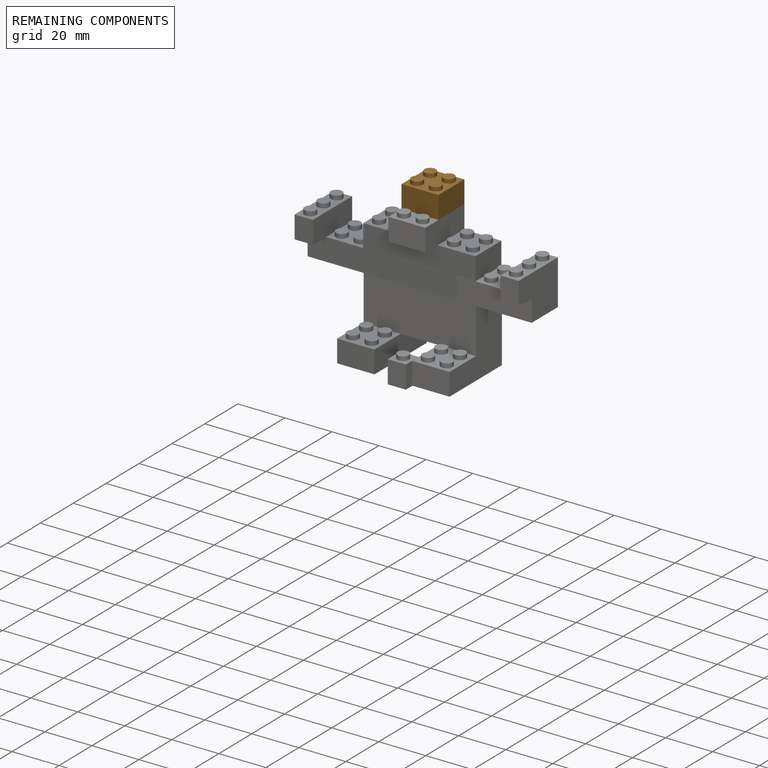
[diagram: remaining components — assembled]
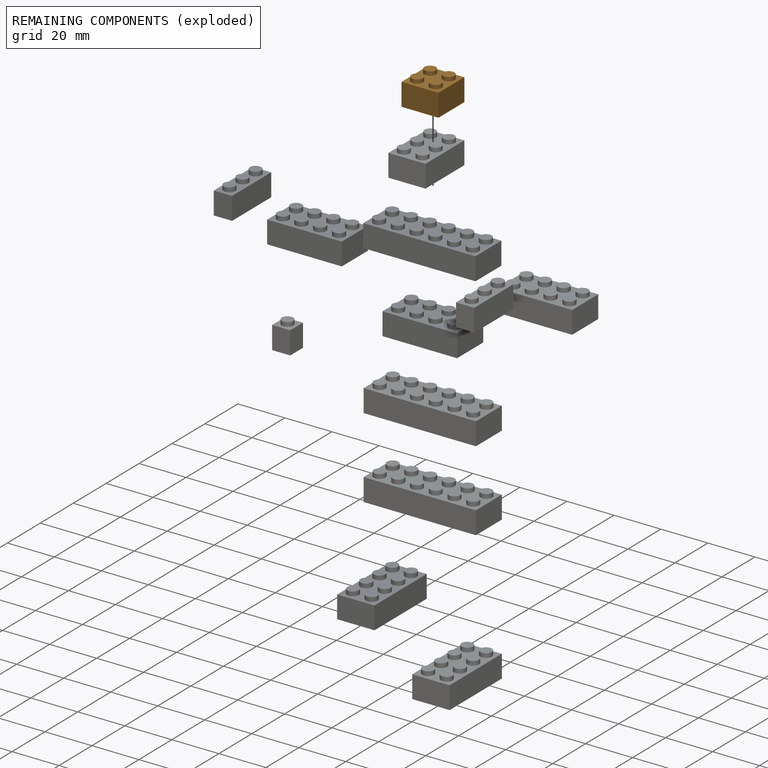
[diagram: remaining components — exploded]
REMAINING COMPONENTS (grouped) — the 1 components below fall outside the per-component tour by the significance rule stated above; both spotlight views highlight the whole group.
  P7: bounding box 15.7 x 15.7 x 11.2 mm, volume 1166 mm^3. Held by: PLANAR mate "Planar 10" to P10.
PROVENANCE & LICENSES
Assembly (occurrences, transforms, mates, per-part STEP geometry): AutoMate dataset, Zenodo record 7776208, CC0.
Construction recipes: CADFS (HuggingFace VladPyatov/CADFS, CC-BY-4.0, layered over the ABC dataset), FeatureScript reconstruction programs keyed by ABC model id.
Join: ABC meta listings map ABC model id -> Onshape documentId; within a shared document, parts are matched by geometric signature (bounding-box dims + volume at 0.1% relative tolerance, exact B-rep face/solid counts).
Verification: 4 of this assembly's 13 components carry a recipe attachment, and every attachment is mesh-verified: the CADFS STEP and the AutoMate member STEP were compared as meshes in their shared local frame (symmetric sampled-point-to-mesh distance); worst across the 4 attachments: below the mesh-comparison resolution (tessellation chordal tolerance ~0.0459 mm) on a 31 mm part.
Renders: orthographic iso camera (az 35 / el 25); the floor grid conveys scale (grid pitch printed in each image; no ruler). In the exploded view each component is displaced by its stored offset vector: the offsets alone carry the explosion direction (mate normal/axis signs are not orientation cues and do not encode it), and separation distances are assigned per mate-chain, not proportionally to assembly-order depth.
